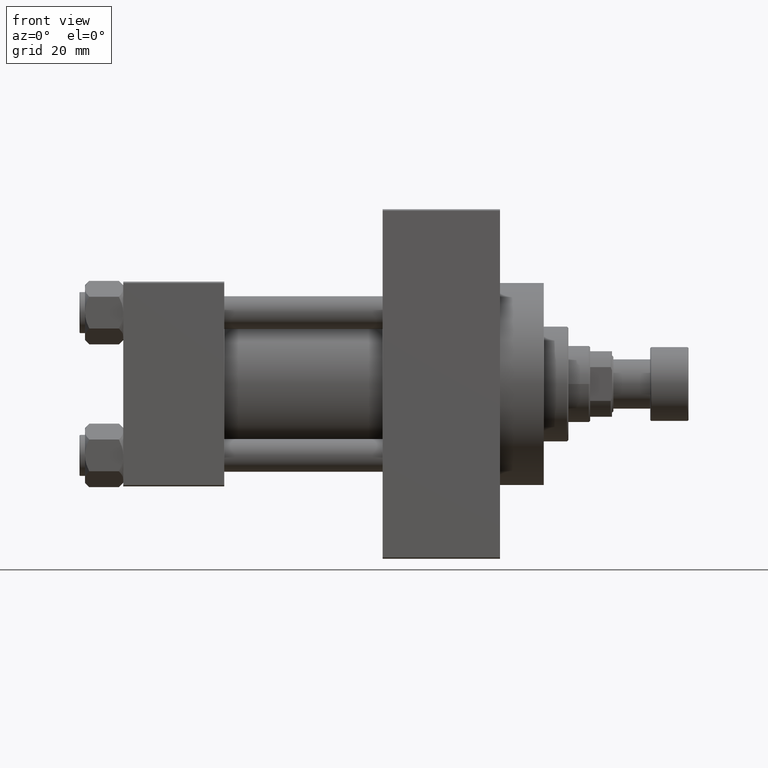
[diagram: clean part render]
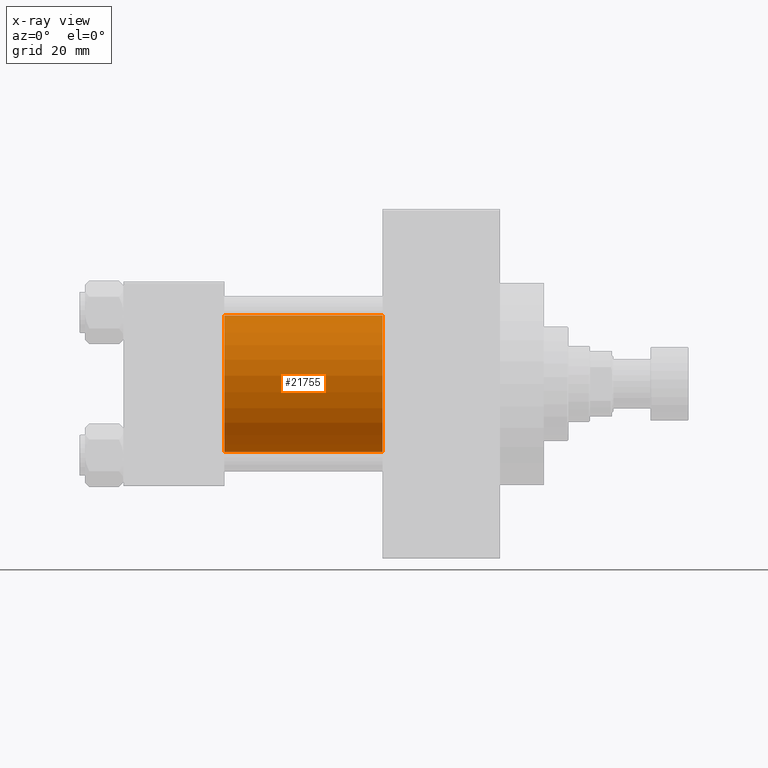
[diagram: x-ray — body ghosted, one internal face saturated and labeled with its STEP entity id]
A machine part, front view, then the same camera in x-ray: the body is ghosted and one INTERNAL B-rep face — a face not visible from any outside direction — is saturated and labeled: STEP entity #21755.
In plain terms, the highlighted cylindrical surface (partial cylindrical patch) has radius 25 mm, axis along (-1, -0, -0).
Its self-contained STEP definition (entity closure, byte-faithful):
#424 = LINE ( 'NONE', #32959, #6929 ) ;
#774 = DIRECTION ( 'NONE',  ( 0.000000000000000000, 0.000000000000000000, 1.000000000000000000 ) ) ;
#1135 = AXIS2_PLACEMENT_3D ( 'NONE', #36741, #44333, #44574 ) ;
#1957 = ORIENTED_EDGE ( 'NONE', *, *, #5755, .T. ) ;
#3128 = VERTEX_POINT ( 'NONE', #13303 ) ;
#3476 = DIRECTION ( 'NONE',  ( 0.000000000000000000, 0.000000000000000000, -1.000000000000000000 ) ) ;
#3578 = VECTOR ( 'NONE', #22316, 1000.000000000000000 ) ;
#5341 = CYLINDRICAL_SURFACE ( 'NONE', #17786, 25.00000000000000000 ) ;
#5755 = EDGE_CURVE ( 'NONE', #3128, #14893, #36653, .T. ) ;
#6929 = VECTOR ( 'NONE', #40189, 1000.000000000000000 ) ;
#7102 = CARTESIAN_POINT ( 'NONE',  ( 95.00000000000000000, -2.602085213965210642E-15, 0.000000000000000000 ) ) ;
#8768 = LINE ( 'NONE', #15092, #3578 ) ;
#12640 = ORIENTED_EDGE ( 'NONE', *, *, #18608, .T. ) ;
#13303 = CARTESIAN_POINT ( 'NONE',  ( 95.00000000000000000, -2.602085213965210642E-15, 25.00000000000000000 ) ) ;
#14893 = VERTEX_POINT ( 'NONE', #42589 ) ;
#15092 = CARTESIAN_POINT ( 'NONE',  ( 95.00000000000000000, -2.602085213965210642E-15, 25.00000000000000000 ) ) ;
#15250 = EDGE_LOOP ( 'NONE', ( #1957, #12640, #22030, #22504 ) ) ;
#16551 = CIRCLE ( 'NONE', #1135, 25.00000000000000000 ) ;
#17053 = VERTEX_POINT ( 'NONE', #28023 ) ;
#17786 = AXIS2_PLACEMENT_3D ( 'NONE', #37397, #19551, #774 ) ;
#18379 = VERTEX_POINT ( 'NONE', #30335 ) ;
#18608 = EDGE_CURVE ( 'NONE', #14893, #17053, #424, .T. ) ;
#19551 = DIRECTION ( 'NONE',  ( -1.000000000000000000, -0.000000000000000000, -0.000000000000000000 ) ) ;
#21755 = ADVANCED_FACE ( 'NONE', ( #23154 ), #5341, .F. ) ;
#22030 = ORIENTED_EDGE ( 'NONE', *, *, #40495, .F. ) ;
#22316 = DIRECTION ( 'NONE',  ( -1.000000000000000000, -0.000000000000000000, -0.000000000000000000 ) ) ;
#22504 = ORIENTED_EDGE ( 'NONE', *, *, #43964, .F. ) ;
#23154 = FACE_OUTER_BOUND ( 'NONE', #15250, .T. ) ;
#28023 = CARTESIAN_POINT ( 'NONE',  ( 37.00000000000000000, 4.595317839031718093E-16, -25.00000000000000000 ) ) ;
#30335 = CARTESIAN_POINT ( 'NONE',  ( 37.00000000000000000, -2.602085213965210642E-15, 25.00000000000000000 ) ) ;
#32959 = CARTESIAN_POINT ( 'NONE',  ( 95.00000000000000000, 4.595317839031718093E-16, -25.00000000000000000 ) ) ;
#36483 = DIRECTION ( 'NONE',  ( 1.000000000000000000, 0.000000000000000000, 0.000000000000000000 ) ) ;
#36653 = CIRCLE ( 'NONE', #38959, 25.00000000000000000 ) ;
#36741 = CARTESIAN_POINT ( 'NONE',  ( 37.00000000000000000, -2.602085213965210642E-15, 0.000000000000000000 ) ) ;
#37397 = CARTESIAN_POINT ( 'NONE',  ( 95.00000000000000000, -2.602085213965210642E-15, 0.000000000000000000 ) ) ;
#38959 = AXIS2_PLACEMENT_3D ( 'NONE', #7102, #36483, #3476 ) ;
#40189 = DIRECTION ( 'NONE',  ( -1.000000000000000000, -0.000000000000000000, -0.000000000000000000 ) ) ;
#40495 = EDGE_CURVE ( 'NONE', #18379, #17053, #16551, .T. ) ;
#42589 = CARTESIAN_POINT ( 'NONE',  ( 95.00000000000000000, 4.595317839031718093E-16, -25.00000000000000000 ) ) ;
#43964 = EDGE_CURVE ( 'NONE', #3128, #18379, #8768, .T. ) ;
#44333 = DIRECTION ( 'NONE',  ( 1.000000000000000000, 0.000000000000000000, 0.000000000000000000 ) ) ;
#44574 = DIRECTION ( 'NONE',  ( 0.000000000000000000, 0.000000000000000000, -1.000000000000000000 ) ) ;